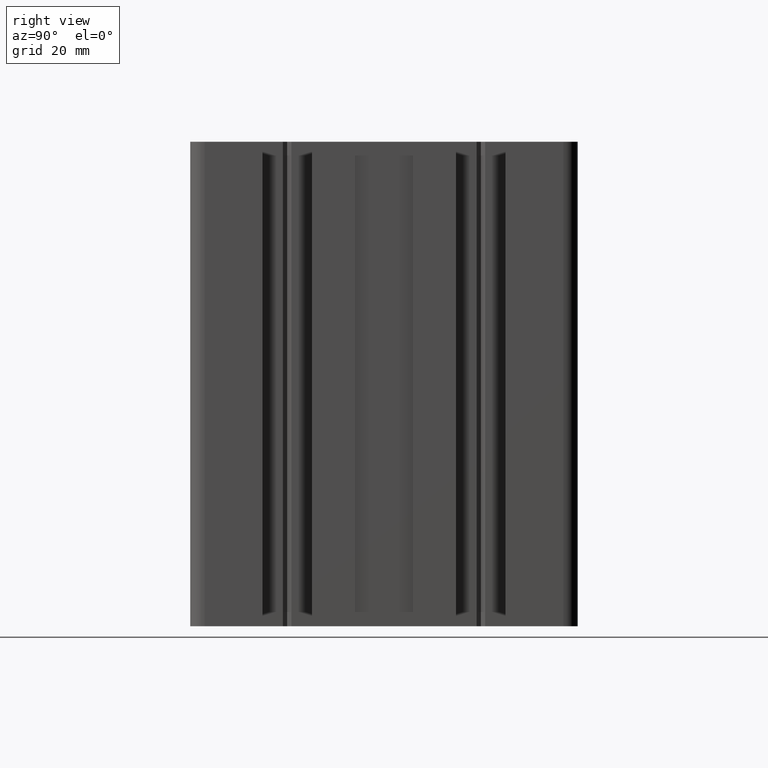
[diagram: clean part render]
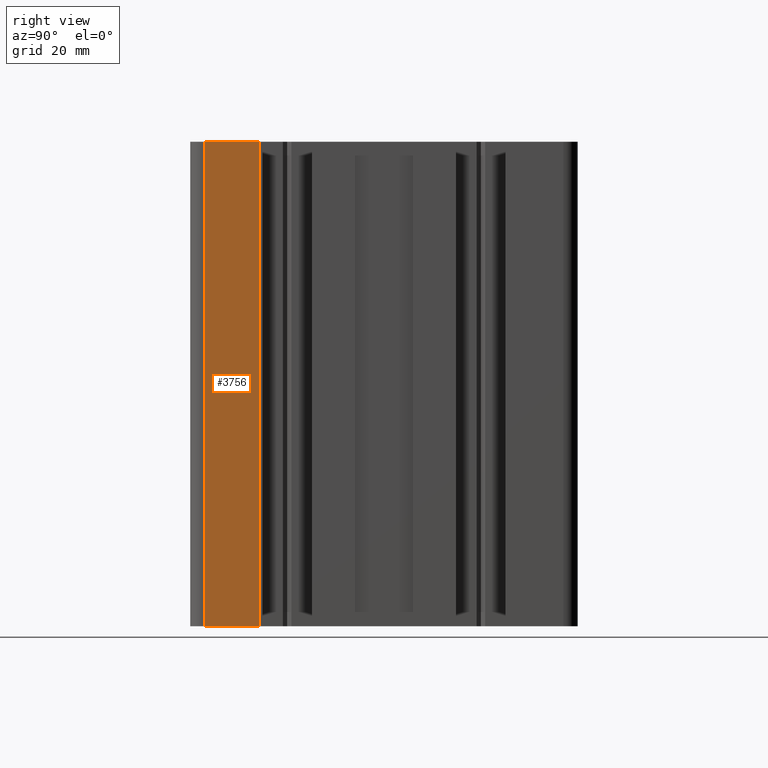
[diagram: same view with one face highlighted and labeled with its STEP entity id]
A machine part, right view. The second image highlights one B-rep face of the part: STEP entity #3756.
In plain terms, the highlighted planar face has unit normal (-1, 0, 0).
Its self-contained STEP definition (entity closure, byte-faithful):
#16 = VERTEX_POINT ( 'NONE', #7424 ) ;
#19 = VERTEX_POINT ( 'NONE', #7431 ) ;
#20 = EDGE_CURVE ( 'NONE', #16, #19, #7416, .T. ) ;
#3704 = EDGE_CURVE ( 'NONE', #6088, #16, #10187, .T. ) ;
#3710 = EDGE_LOOP ( 'NONE', ( #3757, #3755, #3759, #3760 ) ) ;
#3754 = EDGE_CURVE ( 'NONE', #6092, #19, #10236, .T. ) ;
#3755 = ORIENTED_EDGE ( 'NONE', *, *, #3754, .F. ) ;
#3756 = ADVANCED_FACE ( 'NONE', ( #10222 ), #10223, .F. ) ;
#3757 = ORIENTED_EDGE ( 'NONE', *, *, #20, .T. ) ;
#3759 = ORIENTED_EDGE ( 'NONE', *, *, #6091, .F. ) ;
#3760 = ORIENTED_EDGE ( 'NONE', *, *, #3704, .T. ) ;
#6088 = VERTEX_POINT ( 'NONE', #13652 ) ;
#6091 = EDGE_CURVE ( 'NONE', #6088, #6092, #13650, .T. ) ;
#6092 = VERTEX_POINT ( 'NONE', #13648 ) ;
#7413 = DIRECTION ( 'NONE',  ( 1.239088007212406500E-015, 1.000000000000000000, 0.0000000000000000000 ) ) ;
#7414 = VECTOR ( 'NONE', #7413, 1000.000000000000000 ) ;
#7415 = CARTESIAN_POINT ( 'NONE',  ( 39.99999853022907800, -37.00000000000000700, 0.0000000000000000000 ) ) ;
#7416 = LINE ( 'NONE', #7415, #7414 ) ;
#7424 = CARTESIAN_POINT ( 'NONE',  ( 39.99999853022907800, -37.00000000000000700, 0.0000000000000000000 ) ) ;
#7431 = CARTESIAN_POINT ( 'NONE',  ( 39.99999853022909200, -25.79999828338625900, 0.0000000000000000000 ) ) ;
#10182 = DIRECTION ( 'NONE',  ( -0.0000000000000000000, -0.0000000000000000000, -1.000000000000000000 ) ) ;
#10183 = VECTOR ( 'NONE', #10182, 1000.000000000000000 ) ;
#10184 = CARTESIAN_POINT ( 'NONE',  ( 39.99999853022907800, -37.00000000000000700, 100.0000000000000000 ) ) ;
#10187 = LINE ( 'NONE', #10184, #10183 ) ;
#10193 = CARTESIAN_POINT ( 'NONE',  ( 39.99999853022909200, -25.79999828338625900, 100.0000000000000000 ) ) ;
#10222 = FACE_OUTER_BOUND ( 'NONE', #3710, .T. ) ;
#10223 = PLANE ( 'NONE',  #10228 ) ;
#10228 = AXIS2_PLACEMENT_3D ( 'NONE', #10275, #10274, #10273 ) ;
#10236 = LINE ( 'NONE', #10193, #10280 ) ;
#10273 = DIRECTION ( 'NONE',  ( -1.239088007212406500E-015, -1.000000000000000000, 0.0000000000000000000 ) ) ;
#10274 = DIRECTION ( 'NONE',  ( -1.000000000000000000, 1.239088007212406500E-015, 0.0000000000000000000 ) ) ;
#10275 = CARTESIAN_POINT ( 'NONE',  ( 39.99999853022907800, -37.00000000000000700, 100.0000000000000000 ) ) ;
#10279 = DIRECTION ( 'NONE',  ( -0.0000000000000000000, -0.0000000000000000000, -1.000000000000000000 ) ) ;
#10280 = VECTOR ( 'NONE', #10279, 1000.000000000000000 ) ;
#13610 = VECTOR ( 'NONE', #13646, 1000.000000000000000 ) ;
#13646 = DIRECTION ( 'NONE',  ( 1.239088007212406500E-015, 1.000000000000000000, 0.0000000000000000000 ) ) ;
#13648 = CARTESIAN_POINT ( 'NONE',  ( 39.99999853022909200, -25.79999828338625900, 100.0000000000000000 ) ) ;
#13650 = LINE ( 'NONE', #13653, #13610 ) ;
#13652 = CARTESIAN_POINT ( 'NONE',  ( 39.99999853022907800, -37.00000000000000700, 100.0000000000000000 ) ) ;
#13653 = CARTESIAN_POINT ( 'NONE',  ( 39.99999853022907800, -37.00000000000000700, 100.0000000000000000 ) ) ;